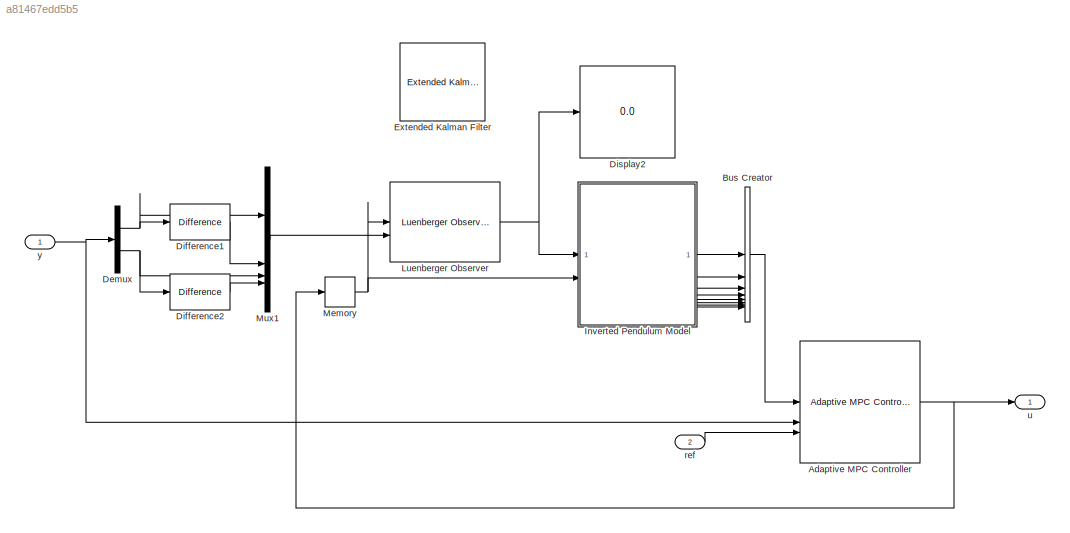
MODEL slx_a81467edd5b5
KIND model
CONFIG AbsTol = auto
CONFIG EnableMultiTasking = off
CONFIG FixedStep = auto
CONFIG MaxStep = auto
CONFIG MinStep = auto
CONFIG RelTol = 1e-3
CONFIG SampleTimeConstraint = Unconstrained
CONFIG SolverName = FixedStepAuto
CONFIG StartTime = 0.0
CONFIG StopTime = 10.0
BLOCK [Reference] Adaptive MPC Controller  REF=mpclib/Adaptive MPC Controller  (lib defined in mdl_ae329e0e0455)
  SCDEnableBlockLinearizationSpecification = on
  SourceBlock = mpclib/Adaptive MPC Controller
  SourceType = Adaptive MPC
BLOCK [BusCreator] Bus Creator
  DisplayOption = bar
  InheritFromInputs = on
  Inputs = 8
BLOCK [Demux] Demux
  Outputs = 2
BLOCK [Reference] Difference1  REF=simulink/Discrete/Difference
  SourceBlock = simulink/Discrete/Difference
  SourceType = Difference
BLOCK [Reference] Difference2  REF=simulink/Discrete/Difference
  SourceBlock = simulink/Discrete/Difference
  SourceType = Difference
BLOCK [Display] Display2
  Decimation = 1
BLOCK [Reference] Extended Kalman Filter  REF=sharedTrackingLibrary/Extended Kalman Filter
  Commented = on
  LibrarySourceBlock = cstblocks/State Estimation/Extended Kalman Filter
  SourceBlock = sharedTrackingLibrary/Extended Kalman Filter
  SourceType = Extended Kalman Filter
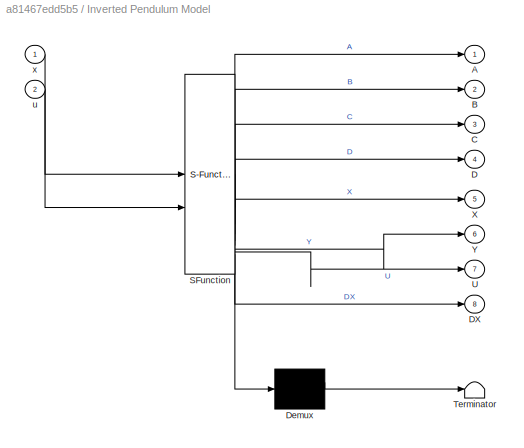
BLOCK [SubSystem] Inverted Pendulum Model
  ErrorFcn = Stateflow.Translate.translate
  PermitHierarchicalResolution = ExplicitOnly
  SFBlockType = MATLAB Function
  TreatAsAtomicUnit = on
BLOCK [Demux] Inverted Pendulum Model/ Demux 
  Outputs = 1
BLOCK [S-Function] Inverted Pendulum Model/ SFunction 
  EnableBusSupport = off
  FunctionName = sf_sfun
  Parameters = p_G,p_Iw,p_Jp,p_Ke,p_Kt,p_La,p_M,p_Ra,p_btheta,p_bx,p_g,p_l,p_m,p_n,p_r
  PortCounts = [2 9]
  SFcnIsStateOwnerBlock = off
  SFunctionDeploymentMode = off
  Tag = Stateflow S-Function 2
BLOCK [Terminator] Inverted Pendulum Model/ Terminator 
BLOCK [Outport] Inverted Pendulum Model/A
BLOCK [Outport] Inverted Pendulum Model/B
  Port = 2
BLOCK [Outport] Inverted Pendulum Model/C
  Port = 3
BLOCK [Outport] Inverted Pendulum Model/D
  Port = 4
BLOCK [Outport] Inverted Pendulum Model/DX
  Port = 8
BLOCK [Outport] Inverted Pendulum Model/U
  Port = 7
BLOCK [Outport] Inverted Pendulum Model/X
  Port = 5
BLOCK [Outport] Inverted Pendulum Model/Y
  Port = 6
BLOCK [Inport] Inverted Pendulum Model/u
  Port = 2
BLOCK [Inport] Inverted Pendulum Model/x
BLOCK [Reference] Luenberger Observer  REF=eeLuenbergerObserver/Luenberger Observer
  LibrarySourceBlock = ee_sl_lib/Observers/Luenberger Observer
  SourceBlock = eeLuenbergerObserver/Luenberger Observer
  SourceType = Luenberger Observer
BLOCK [Memory] Memory
BLOCK [Mux] Mux1
  DisplayOption = bar
BLOCK [Inport] ref
  Port = 2
  PortDimensions = [2 1]
BLOCK [Outport] u
BLOCK [Inport] y
  PortDimensions = [2 1]
NET Adaptive MPC Controller:1 -> Memory:1, u:1
LINE Bus Creator:1 -> Adaptive MPC Controller:1
NET Demux:1 -> Difference1:1, Mux1:1
NET Demux:2 -> Difference2:1, Mux1:3
LINE Difference1:1 -> Mux1:2
LINE Difference2:1 -> Mux1:4
LINE Inverted Pendulum Model:1 -> Bus Creator:1
LINE Inverted Pendulum Model:2 -> Bus Creator:2
LINE Inverted Pendulum Model:3 -> Bus Creator:3
LINE Inverted Pendulum Model:4 -> Bus Creator:4
LINE Inverted Pendulum Model:5 -> Bus Creator:5
LINE Inverted Pendulum Model:6 -> Bus Creator:6
LINE Inverted Pendulum Model:7 -> Bus Creator:7
LINE Inverted Pendulum Model:8 -> Bus Creator:8
NET Luenberger Observer:1 -> Display2:1, Inverted Pendulum Model:1
NET Memory:1 -> Inverted Pendulum Model:2, Luenberger Observer:1
LINE Mux1:1 -> Luenberger Observer:2
LINE ref:1 -> Adaptive MPC Controller:3
NET y:1 -> Adaptive MPC Controller:2, Demux:1
note: NET lines group one-source signal fan-out (src -> all destinations, sorted); 1:1 wires keep LINE
CHART Inverted Pendulum Model states=1 transitions=1
  STATE_LABEL 'eML_blk_kernel()'
  STATE_LABEL 'SCRIPT:\nfunction [A, B, C, D, X, Y, U, DX] = fcn(x, u, p_M, p_m, p_g, p_l, p_r, p_Iw, p_n, p_G, p_Jp, p_bx, p_btheta, p_Kt, p_Ke, p_Ra, p_La)\nTs = 0.01;\n\n[Ac, Bc, Cc, Dc] = pendulum_state_space(p_M, p_m, p_g, p_l, p_r, p_Iw, p_n, p_G, p_Jp, p_bx, p_btheta, p_Kt, p_Ke, p_Ra, p_La);\n\nnx = size(Ac, 1);\nnu = size(Bc, 2);\nM = expm([[Ac Bc] * Ts; zeros(nu, nx+nu)]);\nA = M(1:nx, 1:nx);\nB = M(1:nx, nx+1:n...<+77ch>'
CHART  states=0 transitions=0
